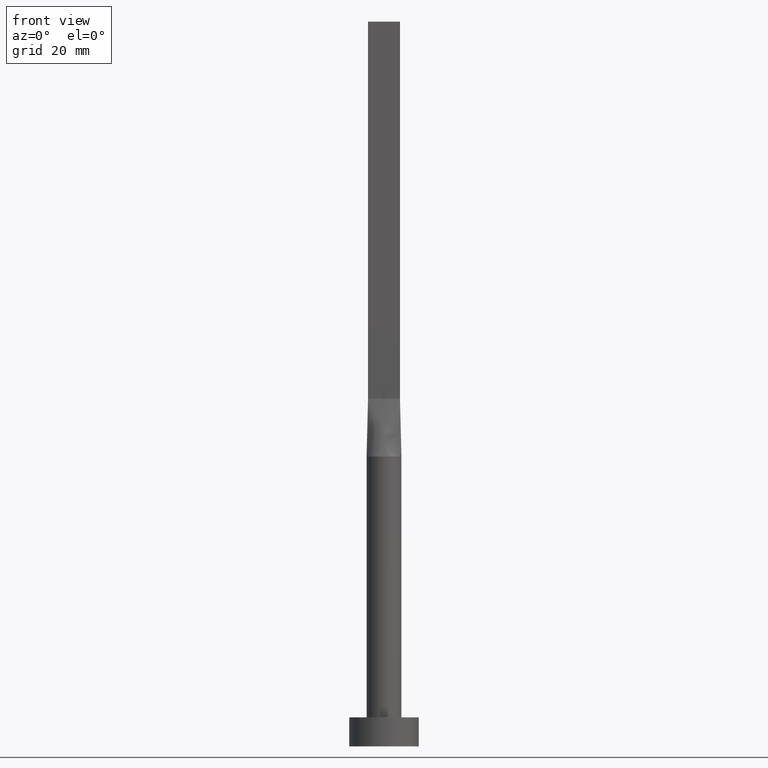
[diagram: clean part render]
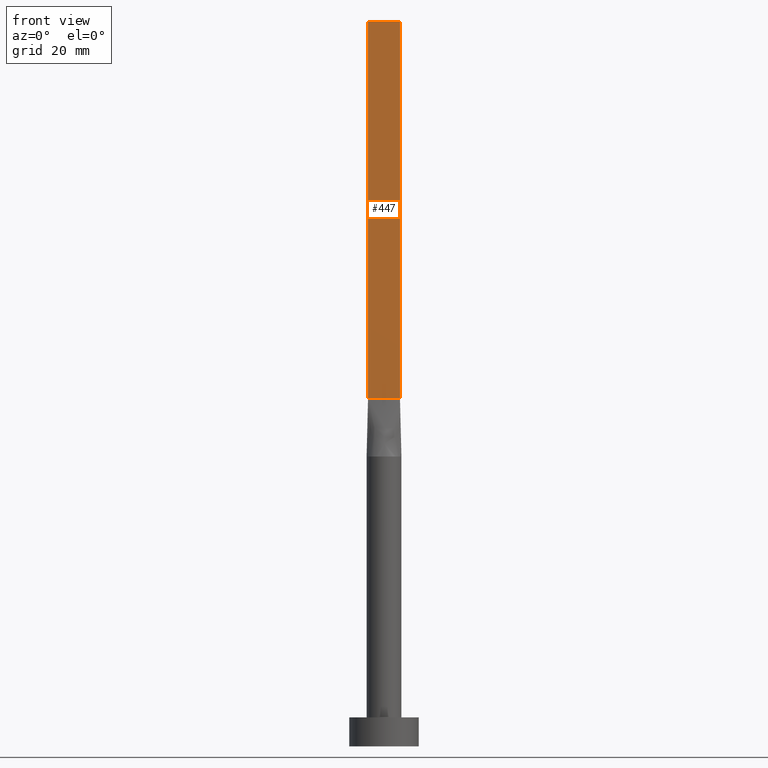
[diagram: same view with one face highlighted and labeled with its STEP entity id]
A machine part, front view. The second image highlights one B-rep face of the part: STEP entity #447.
In plain terms, the highlighted planar face has unit normal (0, 1, -0).
Its self-contained STEP definition (entity closure, byte-faithful):
#19 = DIRECTION ( 'NONE',  ( 1.000000000000000000, -5.913830031739115543E-17, 0.000000000000000000 ) ) ;
#24 = CARTESIAN_POINT ( 'NONE',  ( -2.750000000000000000, -0.7499999999999994449, 125.0000000000000000 ) ) ;
#30 = EDGE_CURVE ( 'NONE', #245, #469, #148, .T. ) ;
#39 = LINE ( 'NONE', #42, #412 ) ;
#42 = CARTESIAN_POINT ( 'NONE',  ( -2.750000000000000000, -0.7499999999999994449, 125.0000000000000000 ) ) ;
#64 = DIRECTION ( 'NONE',  ( 1.000000000000000000, -5.913830031739115543E-17, 0.000000000000000000 ) ) ;
#70 = ORIENTED_EDGE ( 'NONE', *, *, #201, .F. ) ;
#75 = EDGE_CURVE ( 'NONE', #461, #469, #368, .T. ) ;
#101 = EDGE_CURVE ( 'NONE', #165, #245, #39, .T. ) ;
#105 = CARTESIAN_POINT ( 'NONE',  ( -2.750000000000000000, -0.7499999999999994449, 60.00000000000000000 ) ) ;
#122 = ORIENTED_EDGE ( 'NONE', *, *, #30, .T. ) ;
#130 = DIRECTION ( 'NONE',  ( 5.913830031739115543E-17, 1.000000000000000000, -0.000000000000000000 ) ) ;
#142 = AXIS2_PLACEMENT_3D ( 'NONE', #501, #130, #187 ) ;
#148 = LINE ( 'NONE', #105, #564 ) ;
#165 = VERTEX_POINT ( 'NONE', #24 ) ;
#187 = DIRECTION ( 'NONE',  ( -1.000000000000000000, 5.913830031739115543E-17, 0.000000000000000000 ) ) ;
#201 = EDGE_CURVE ( 'NONE', #165, #461, #379, .T. ) ;
#237 = ORIENTED_EDGE ( 'NONE', *, *, #75, .F. ) ;
#245 = VERTEX_POINT ( 'NONE', #252 ) ;
#252 = CARTESIAN_POINT ( 'NONE',  ( -2.750000000000000000, -0.7499999999999994449, 60.00000000000000000 ) ) ;
#268 = FACE_OUTER_BOUND ( 'NONE', #355, .T. ) ;
#305 = CARTESIAN_POINT ( 'NONE',  ( 2.750000000000000000, -0.7499999999999997780, 125.0000000000000000 ) ) ;
#309 = CARTESIAN_POINT ( 'NONE',  ( 2.750000000000000000, -0.7499999999999997780, 60.00000000000000000 ) ) ;
#333 = VECTOR ( 'NONE', #64, 1000.000000000000000 ) ;
#343 = PLANE ( 'NONE',  #142 ) ;
#355 = EDGE_LOOP ( 'NONE', ( #122, #237, #70, #409 ) ) ;
#368 = LINE ( 'NONE', #464, #512 ) ;
#377 = DIRECTION ( 'NONE',  ( -0.000000000000000000, -0.000000000000000000, -1.000000000000000000 ) ) ;
#379 = LINE ( 'NONE', #557, #333 ) ;
#396 = DIRECTION ( 'NONE',  ( -0.000000000000000000, -0.000000000000000000, -1.000000000000000000 ) ) ;
#409 = ORIENTED_EDGE ( 'NONE', *, *, #101, .T. ) ;
#412 = VECTOR ( 'NONE', #396, 1000.000000000000000 ) ;
#447 = ADVANCED_FACE ( 'NONE', ( #268 ), #343, .F. ) ;
#461 = VERTEX_POINT ( 'NONE', #305 ) ;
#464 = CARTESIAN_POINT ( 'NONE',  ( 2.750000000000000000, -0.7499999999999997780, 125.0000000000000000 ) ) ;
#469 = VERTEX_POINT ( 'NONE', #309 ) ;
#501 = CARTESIAN_POINT ( 'NONE',  ( -2.750000000000000000, -0.7499999999999994449, 125.0000000000000000 ) ) ;
#512 = VECTOR ( 'NONE', #377, 1000.000000000000000 ) ;
#557 = CARTESIAN_POINT ( 'NONE',  ( -2.750000000000000000, -0.7499999999999994449, 125.0000000000000000 ) ) ;
#564 = VECTOR ( 'NONE', #19, 1000.000000000000000 ) ;